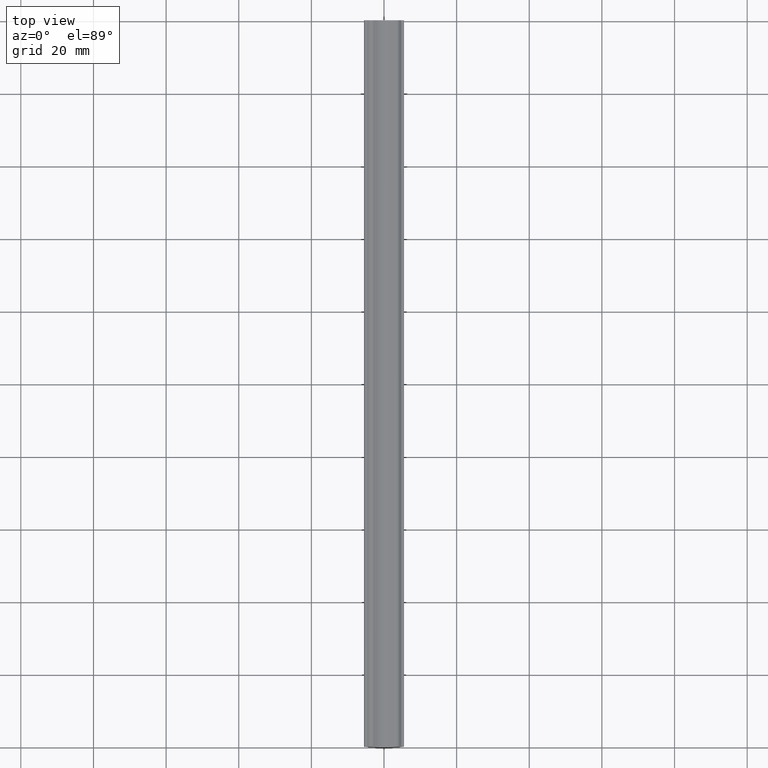
[diagram: clean part render]
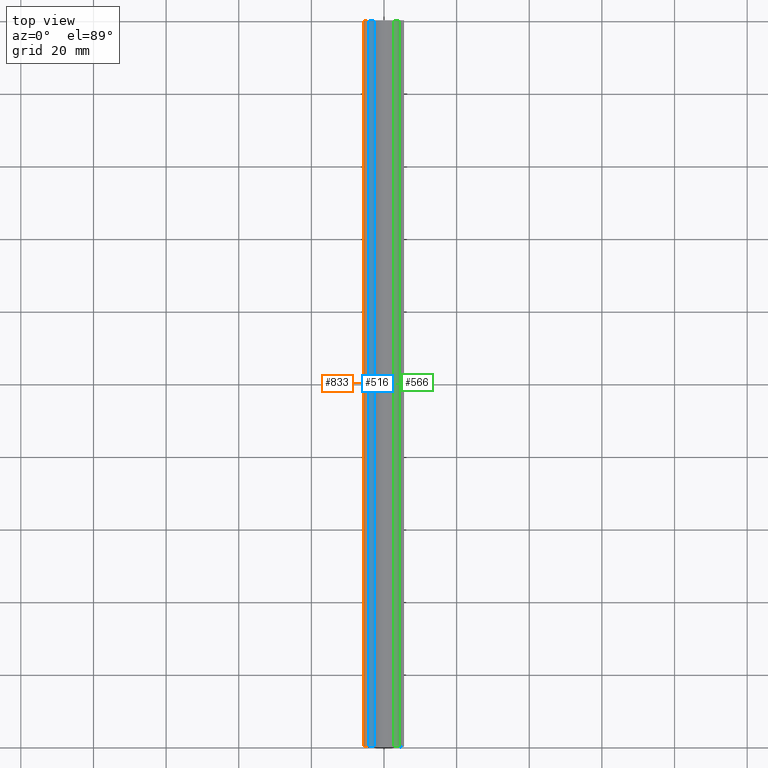
[diagram: same view with three faces highlighted in distinct colors, each labeled with its STEP entity id]
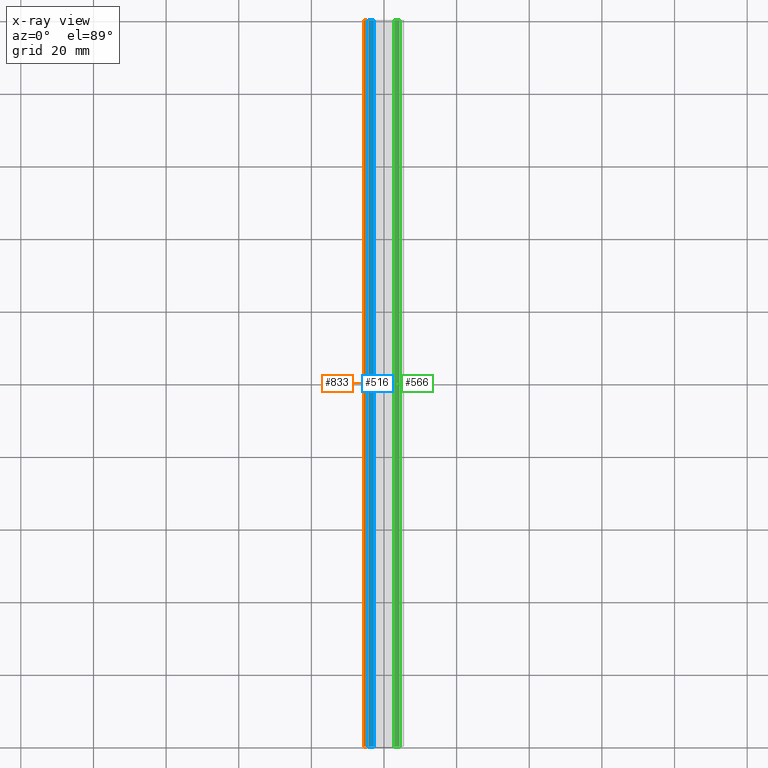
[diagram: x-ray of the same camera — body ghosted, the three highlighted faces saturated]
A machine part, top view with three faces highlighted in distinct colors.
The next image is the same camera in x-ray (body ghosted, the three faces saturated) — at least one of them is partly hidden behind the body in this view.
Their STEP definitions:

[orange] entity #833 — the highlighted face is a freeform B-spline surface patch.
#49=CARTESIAN_POINT('',(-4.646446609404960,0.0,-0.146446614373772));
#50=VERTEX_POINT('',#49);
#51=CARTESIAN_POINT('',(-5.353553390594760,0.0,-0.853553395557597));
#52=VERTEX_POINT('',#51);
#53=CARTESIAN_POINT('',(-4.646446609404960,0.0,-0.146446614373773));
#54=CARTESIAN_POINT('',(-4.850570754636157,0.0,0.057677530859196));
#55=CARTESIAN_POINT('',(-5.129409522549285,0.0,-0.017037091820341));
#56=CARTESIAN_POINT('',(-5.408248290462413,0.0,-0.091751714499878));
#57=CARTESIAN_POINT('',(-5.482962913144307,0.0,-0.370590482412375));
#58=CARTESIAN_POINT('',(-5.557677535826201,0.0,-0.649429250324872));
#59=CARTESIAN_POINT('',(-5.353553390594760,0.0,-0.853553395557597));
#67=(BOUNDED_CURVE()B_SPLINE_CURVE(2,(#53,#54,#55,#56,#57,#58,#59),.UNSPECIFIED.,.F.,.U.)B_SPLINE_CURVE_WITH_KNOTS((3,2,2,3),(0.0,0.333333333333333,0.666666666666667,1.0),.UNSPECIFIED.)CURVE()GEOMETRIC_REPRESENTATION_ITEM()RATIONAL_B_SPLINE_CURVE((1.0,0.866025403784419,1.0,0.866025403784419,1.0,0.866025403784419,1.0))REPRESENTATION_ITEM(''));
#68=EDGE_CURVE('',#50,#52,#67,.T.);
#263=CARTESIAN_POINT('',(-4.646446609404960,200.0,-0.146446614373772));
#264=VERTEX_POINT('',#263);
#265=CARTESIAN_POINT('',(-5.353553390594760,200.0,-0.853553395557597));
#266=VERTEX_POINT('',#265);
#267=CARTESIAN_POINT('',(-4.646446609404960,200.0,-0.146446614373773));
#268=CARTESIAN_POINT('',(-4.850570754636157,199.999999999999970,0.057677530859196));
#269=CARTESIAN_POINT('',(-5.129409522549285,200.0,-0.017037091820341));
#270=CARTESIAN_POINT('',(-5.408248290462413,199.999999999999970,-0.091751714499878));
#271=CARTESIAN_POINT('',(-5.482962913144307,200.0,-0.370590482412375));
#272=CARTESIAN_POINT('',(-5.557677535826201,199.999999999999970,-0.649429250324872));
#273=CARTESIAN_POINT('',(-5.353553390594957,200.0,-0.853553395557794));
#281=(BOUNDED_CURVE()B_SPLINE_CURVE(2,(#267,#268,#269,#270,#271,#272,#273),.UNSPECIFIED.,.F.,.U.)B_SPLINE_CURVE_WITH_KNOTS((3,2,2,3),(0.0,0.333333333333333,0.666666666666667,1.0),.UNSPECIFIED.)CURVE()GEOMETRIC_REPRESENTATION_ITEM()RATIONAL_B_SPLINE_CURVE((1.0,0.866025403784419,1.0,0.866025403784419,1.0,0.866025403784419,1.0))REPRESENTATION_ITEM(''));
#282=EDGE_CURVE('',#264,#266,#281,.T.);
#484=CARTESIAN_POINT('',(-4.646446609404960,200.0,-0.146446614373772));
#485=CARTESIAN_POINT('',(-4.646446609404960,0.0,-0.146446614373772));
#486=QUASI_UNIFORM_CURVE('',1,(#484,#485),.UNSPECIFIED.,.F.,.U.);
#487=EDGE_CURVE('',#264,#50,#486,.T.);
#799=CARTESIAN_POINT('',(-5.353553390594760,200.0,-0.853553395557597));
#800=CARTESIAN_POINT('',(-5.353553390594760,0.0,-0.853553395557597));
#801=QUASI_UNIFORM_CURVE('',1,(#799,#800),.UNSPECIFIED.,.F.,.U.);
#802=EDGE_CURVE('',#266,#52,#801,.T.);
#809=CARTESIAN_POINT('',(-5.344177287848676,205.0,-0.862687190470628));
#810=CARTESIAN_POINT('',(-5.344177287848676,-5.125000000000000,-0.862687190470628));
#811=CARTESIAN_POINT('',(-5.726369835627814,205.000000000000030,-0.500000004962589));
#812=CARTESIAN_POINT('',(-5.726369835627814,-5.124999999999999,-0.500000004962589));
#813=CARTESIAN_POINT('',(-5.344177287845527,205.0,-0.137312819457868));
#814=CARTESIAN_POINT('',(-5.344177287845527,-5.125000000000000,-0.137312819457868));
#815=CARTESIAN_POINT('',(-4.961984740063240,205.000000000000030,0.225374366046854));
#816=CARTESIAN_POINT('',(-4.961984740063240,-5.124999999999999,0.225374366046854));
#817=CARTESIAN_POINT('',(-4.619797017198328,205.0,-0.175275980802089));
#818=CARTESIAN_POINT('',(-4.619797017198328,-5.125000000000000,-0.175275980802089));
#826=(BOUNDED_SURFACE()B_SPLINE_SURFACE(1,2,((#809,#811,#813,#815,#817),(#810,#812,#814,#816,#818)),.UNSPECIFIED.,.F.,.F.,.U.)B_SPLINE_SURFACE_WITH_KNOTS((2,2),(3,2,3),(0.0,210.125000000000000),(0.0,1.0,2.0),.UNSPECIFIED.)GEOMETRIC_REPRESENTATION_ITEM()RATIONAL_B_SPLINE_SURFACE(((1.0,0.688354575693754,1.0,0.688354575693754,1.0),(1.0,0.688354575693754,1.0,0.688354575693754,1.0)))REPRESENTATION_ITEM('')SURFACE());
#827=ORIENTED_EDGE('',*,*,#68,.F.);
#828=ORIENTED_EDGE('',*,*,#487,.F.);
#829=ORIENTED_EDGE('',*,*,#282,.T.);
#830=ORIENTED_EDGE('',*,*,#802,.T.);
#831=EDGE_LOOP('',(#827,#828,#829,#830));
#832=FACE_OUTER_BOUND('',#831,.T.);
#833=ADVANCED_FACE('',(#832),#826,.T.);

[blue] entity #516 — the highlighted face is a freeform B-spline surface patch.
#220=CARTESIAN_POINT('',(-2.774911738046120,0.0,-0.751330207427227));
#221=VERTEX_POINT('',#220);
#235=CARTESIAN_POINT('',(-4.229022304364881,0.0,-0.563870919417744));
#236=VERTEX_POINT('',#235);
#237=CARTESIAN_POINT('',(-4.229022304364881,0.0,-0.563870919417745));
#238=CARTESIAN_POINT('',(-3.574289727667305,0.0,-1.218603503141107));
#239=CARTESIAN_POINT('',(-2.774911738046120,0.0,-0.751330207427227));
#247=(BOUNDED_CURVE()B_SPLINE_CURVE(2,(#237,#238,#239),.UNSPECIFIED.,.F.,.U.)CURVE()GEOMETRIC_REPRESENTATION_ITEM()QUASI_UNIFORM_CURVE()RATIONAL_B_SPLINE_CURVE((1.0,0.791712881770559,1.0))REPRESENTATION_ITEM(''));
#248=EDGE_CURVE('',#236,#221,#247,.T.);
#284=CARTESIAN_POINT('',(-4.229022304364881,200.0,-0.563870919417744));
#285=VERTEX_POINT('',#284);
#291=CARTESIAN_POINT('',(-2.774911738046120,200.0,-0.751330207427227));
#292=VERTEX_POINT('',#291);
#293=CARTESIAN_POINT('',(-4.229022304364881,200.0,-0.563870919417745));
#294=CARTESIAN_POINT('',(-3.574289727667305,200.000000000000030,-1.218603503141107));
#295=CARTESIAN_POINT('',(-2.774911738046039,200.0,-0.751330207427366));
#303=(BOUNDED_CURVE()B_SPLINE_CURVE(2,(#293,#294,#295),.UNSPECIFIED.,.F.,.U.)CURVE()GEOMETRIC_REPRESENTATION_ITEM()QUASI_UNIFORM_CURVE()RATIONAL_B_SPLINE_CURVE((1.0,0.791712881770559,1.0))REPRESENTATION_ITEM(''));
#304=EDGE_CURVE('',#285,#292,#303,.T.);
#478=CARTESIAN_POINT('',(-4.229022304364881,200.0,-0.563870919417744));
#479=CARTESIAN_POINT('',(-4.229022304364881,0.0,-0.563870919417744));
#480=QUASI_UNIFORM_CURVE('',1,(#478,#479),.UNSPECIFIED.,.F.,.U.);
#481=EDGE_CURVE('',#285,#236,#480,.T.);
#492=CARTESIAN_POINT('',(-2.765894215734190,205.0,-0.746006123708116));
#493=CARTESIAN_POINT('',(-2.765894215734190,-5.125000000000000,-0.746006123708116));
#494=CARTESIAN_POINT('',(-3.615507508979148,204.999999999999970,-1.252643219562017));
#495=CARTESIAN_POINT('',(-3.615507508979148,-5.124999999999999,-1.252643219562017));
#496=CARTESIAN_POINT('',(-4.274950113354946,205.0,-0.515310630774648));
#497=CARTESIAN_POINT('',(-4.274950113354946,-5.125000000000000,-0.515310630774648));
#505=(BOUNDED_SURFACE()B_SPLINE_SURFACE(1,2,((#492,#494,#496),(#493,#495,#497)),.UNSPECIFIED.,.F.,.F.,.U.)B_SPLINE_SURFACE_WITH_KNOTS((2,2),(3,3),(0.0,210.125000000000110),(0.0,1.0),.UNSPECIFIED.)GEOMETRIC_REPRESENTATION_ITEM()RATIONAL_B_SPLINE_SURFACE(((1.0,0.771624583387720,1.0),(1.0,0.771624583387720,1.0)))REPRESENTATION_ITEM('')SURFACE());
#506=ORIENTED_EDGE('',*,*,#248,.T.);
#507=CARTESIAN_POINT('',(-2.774911738046120,200.0,-0.751330207427227));
#508=CARTESIAN_POINT('',(-2.774911738046120,0.0,-0.751330207427227));
#509=QUASI_UNIFORM_CURVE('',1,(#507,#508),.UNSPECIFIED.,.F.,.U.);
#510=EDGE_CURVE('',#292,#221,#509,.T.);
#511=ORIENTED_EDGE('',*,*,#510,.F.);
#512=ORIENTED_EDGE('',*,*,#304,.F.);
#513=ORIENTED_EDGE('',*,*,#481,.T.);
#514=EDGE_LOOP('',(#506,#511,#512,#513));
#515=FACE_OUTER_BOUND('',#514,.T.);
#516=ADVANCED_FACE('',(#515),#505,.F.);

[green] entity #566 — the highlighted face is a freeform B-spline surface patch.
#198=CARTESIAN_POINT('',(4.229022304365000,0.0,-0.563870919417823));
#199=VERTEX_POINT('',#198);
#205=CARTESIAN_POINT('',(2.774911744944005,0.0,-0.751330199955418));
#206=VERTEX_POINT('',#205);
#207=CARTESIAN_POINT('',(2.774911744944005,0.0,-0.751330199955418));
#208=CARTESIAN_POINT('',(3.574289728097483,0.0,-1.218603495688084));
#209=CARTESIAN_POINT('',(4.229022304365000,0.0,-0.563870919417823));
#217=(BOUNDED_CURVE()B_SPLINE_CURVE(2,(#207,#208,#209),.UNSPECIFIED.,.F.,.U.)CURVE()GEOMETRIC_REPRESENTATION_ITEM()QUASI_UNIFORM_CURVE()RATIONAL_B_SPLINE_CURVE((1.0,0.791712882326568,1.0))REPRESENTATION_ITEM(''));
#218=EDGE_CURVE('',#206,#199,#217,.T.);
#306=CARTESIAN_POINT('',(2.774911744944005,200.0,-0.751330199955418));
#307=VERTEX_POINT('',#306);
#321=CARTESIAN_POINT('',(4.229022304365000,200.0,-0.563870919417823));
#322=VERTEX_POINT('',#321);
#323=CARTESIAN_POINT('',(2.774911744944005,200.0,-0.751330199955418));
#324=CARTESIAN_POINT('',(3.574289728097483,199.999999999999970,-1.218603495688084));
#325=CARTESIAN_POINT('',(4.229022304364832,200.0,-0.563870919417655));
#333=(BOUNDED_CURVE()B_SPLINE_CURVE(2,(#323,#324,#325),.UNSPECIFIED.,.F.,.U.)CURVE()GEOMETRIC_REPRESENTATION_ITEM()QUASI_UNIFORM_CURVE()RATIONAL_B_SPLINE_CURVE((1.0,0.791712882326568,1.0))REPRESENTATION_ITEM(''));
#334=EDGE_CURVE('',#307,#322,#333,.T.);
#532=CARTESIAN_POINT('',(2.774911744944005,200.0,-0.751330199955418));
#533=CARTESIAN_POINT('',(2.774911744944005,0.0,-0.751330199955418));
#534=QUASI_UNIFORM_CURVE('',1,(#532,#533),.UNSPECIFIED.,.F.,.U.);
#535=EDGE_CURVE('',#307,#206,#534,.T.);
#542=CARTESIAN_POINT('',(4.250943412155668,205.0,-0.541368272826250));
#543=CARTESIAN_POINT('',(4.250943412155668,-5.125000000000000,-0.541368272826250));
#544=CARTESIAN_POINT('',(3.557825727456818,205.0,-1.271761913446098));
#545=CARTESIAN_POINT('',(3.557825727456818,-5.124999999999999,-1.271761913446098));
#546=CARTESIAN_POINT('',(2.718169784566903,205.0,-0.716005768477951));
#547=CARTESIAN_POINT('',(2.718169784566903,-5.125000000000000,-0.716005768477951));
#555=(BOUNDED_SURFACE()B_SPLINE_SURFACE(1,2,((#542,#544,#546),(#543,#545,#547)),.UNSPECIFIED.,.F.,.F.,.U.)B_SPLINE_SURFACE_WITH_KNOTS((2,2),(3,3),(0.0,210.125000000000110),(0.0,1.0),.UNSPECIFIED.)GEOMETRIC_REPRESENTATION_ITEM()RATIONAL_B_SPLINE_SURFACE(((1.0,0.766044443118978,1.0),(1.0,0.766044443118978,1.0)))REPRESENTATION_ITEM('')SURFACE());
#556=ORIENTED_EDGE('',*,*,#218,.T.);
#557=CARTESIAN_POINT('',(4.229022304365000,200.0,-0.563870919417823));
#558=CARTESIAN_POINT('',(4.229022304365000,0.0,-0.563870919417823));
#559=QUASI_UNIFORM_CURVE('',1,(#557,#558),.UNSPECIFIED.,.F.,.U.);
#560=EDGE_CURVE('',#322,#199,#559,.T.);
#561=ORIENTED_EDGE('',*,*,#560,.F.);
#562=ORIENTED_EDGE('',*,*,#334,.F.);
#563=ORIENTED_EDGE('',*,*,#535,.T.);
#564=EDGE_LOOP('',(#556,#561,#562,#563));
#565=FACE_OUTER_BOUND('',#564,.T.);
#566=ADVANCED_FACE('',(#565),#555,.F.);